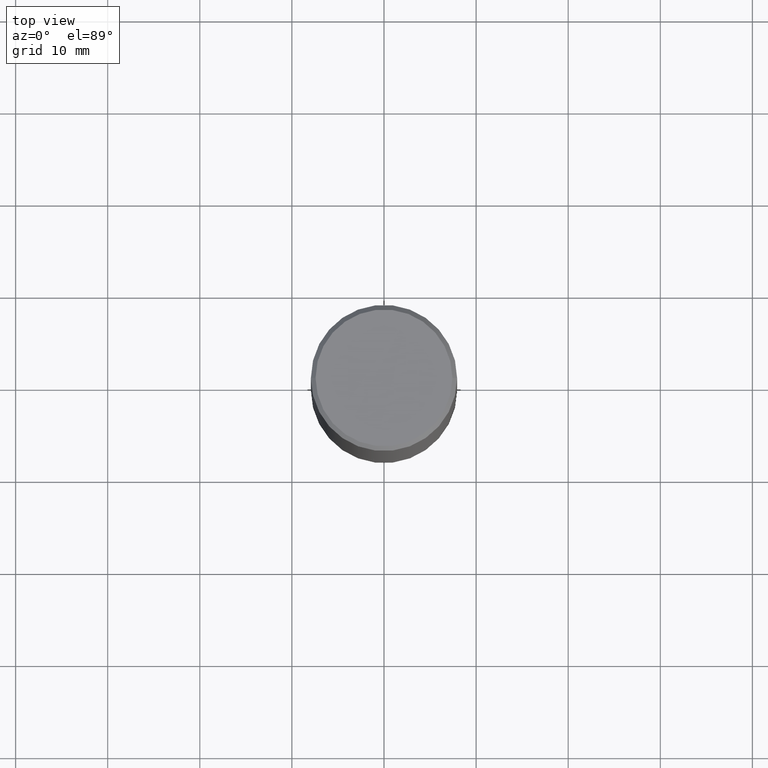
[diagram: clean part render]
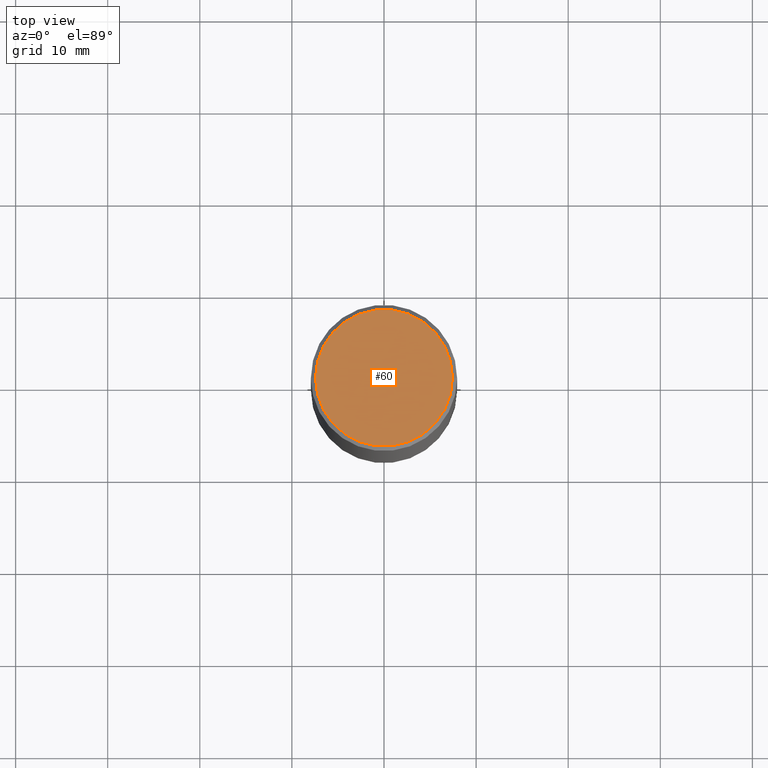
[diagram: same view with one face highlighted and labeled with its STEP entity id]
A machine part, top view. The second image highlights one B-rep face of the part: STEP entity #60.
In plain terms, the highlighted planar face has unit normal (0, -0, -1).
Its self-contained STEP definition (entity closure, byte-faithful):
#3 = DIRECTION ( 'NONE',  ( 2.438088387897960049E-29, -3.491481338843145188E-15, -1.000000000000000000 ) ) ;
#9 = EDGE_LOOP ( 'NONE', ( #69, #44 ) ) ;
#27 = CIRCLE ( 'NONE', #99, 0.2924999999999997602 ) ;
#38 = FACE_OUTER_BOUND ( 'NONE', #9, .T. ) ;
#44 = ORIENTED_EDGE ( 'NONE', *, *, #180, .T. ) ;
#50 = CARTESIAN_POINT ( 'NONE',  ( -2.087702828670439639E-46, 2.980686340760894400E-32, 8.537024980200822558E-18 ) ) ;
#60 = ADVANCED_FACE ( 'NONE', ( #38 ), #309, .F. ) ;
#69 = ORIENTED_EDGE ( 'NONE', *, *, #372, .T. ) ;
#75 = AXIS2_PLACEMENT_3D ( 'NONE', #50, #285, #125 ) ;
#76 = DIRECTION ( 'NONE',  ( -1.000000000000000000, 6.982962677686265922E-15, -4.876176775795935793E-29 ) ) ;
#99 = AXIS2_PLACEMENT_3D ( 'NONE', #201, #205, #363 ) ;
#125 = DIRECTION ( 'NONE',  ( 1.000000000000000000, -6.982962677686266711E-15, 4.876067333457693400E-29 ) ) ;
#180 = EDGE_CURVE ( 'NONE', #202, #264, #189, .T. ) ;
#189 = CIRCLE ( 'NONE', #75, 0.2924999999999997602 ) ;
#201 = CARTESIAN_POINT ( 'NONE',  ( -2.087702828670439639E-46, 2.980686340760894400E-32, 8.537024980200822558E-18 ) ) ;
#202 = VERTEX_POINT ( 'NONE', #229 ) ;
#205 = DIRECTION ( 'NONE',  ( -2.445468806185136597E-29, 3.491481338843145583E-15, 1.000000000000000000 ) ) ;
#229 = CARTESIAN_POINT ( 'NONE',  ( 0.2924999999999997602, -2.110215457714318353E-15, 8.537024980215342529E-18 ) ) ;
#264 = VERTEX_POINT ( 'NONE', #386 ) ;
#285 = DIRECTION ( 'NONE',  ( -2.445468806185136597E-29, 3.491481338843145583E-15, 1.000000000000000000 ) ) ;
#297 = AXIS2_PLACEMENT_3D ( 'NONE', #385, #3, #76 ) ;
#309 = PLANE ( 'NONE',  #297 ) ;
#363 = DIRECTION ( 'NONE',  ( 1.000000000000000000, -6.982962677686266711E-15, 4.876067333457693400E-29 ) ) ;
#372 = EDGE_CURVE ( 'NONE', #264, #202, #27, .T. ) ;
#385 = CARTESIAN_POINT ( 'NONE',  ( 2.042516583223231356E-15, 0.2924999999999997602, -1.016989779121518999E-15 ) ) ;
#386 = CARTESIAN_POINT ( 'NONE',  ( -0.2924999999999997602, 2.077431396611662611E-15, 8.537024980186416602E-18 ) ) ;